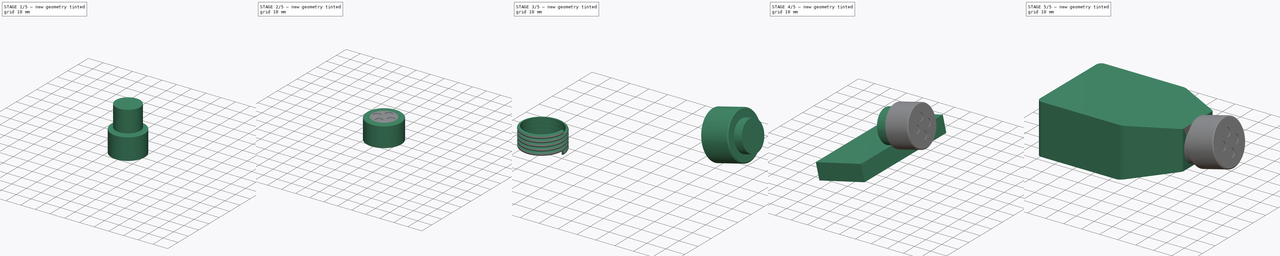
[diagram: build sequence overview — one tinted view per stage of 5, left to right]
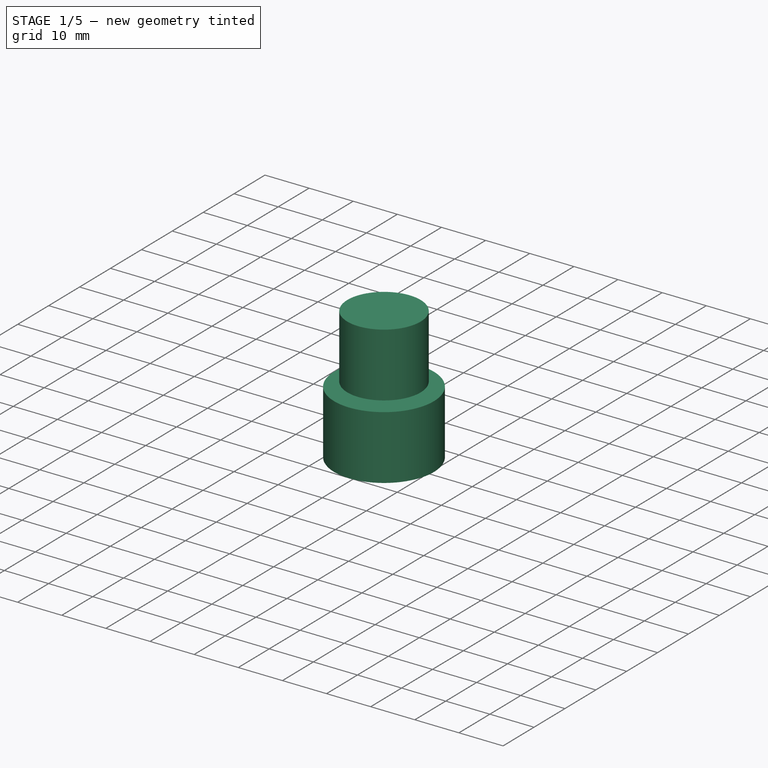
[diagram: stage 1 of 5 — iso view after this stage's code; geometry added in this stage tinted green]
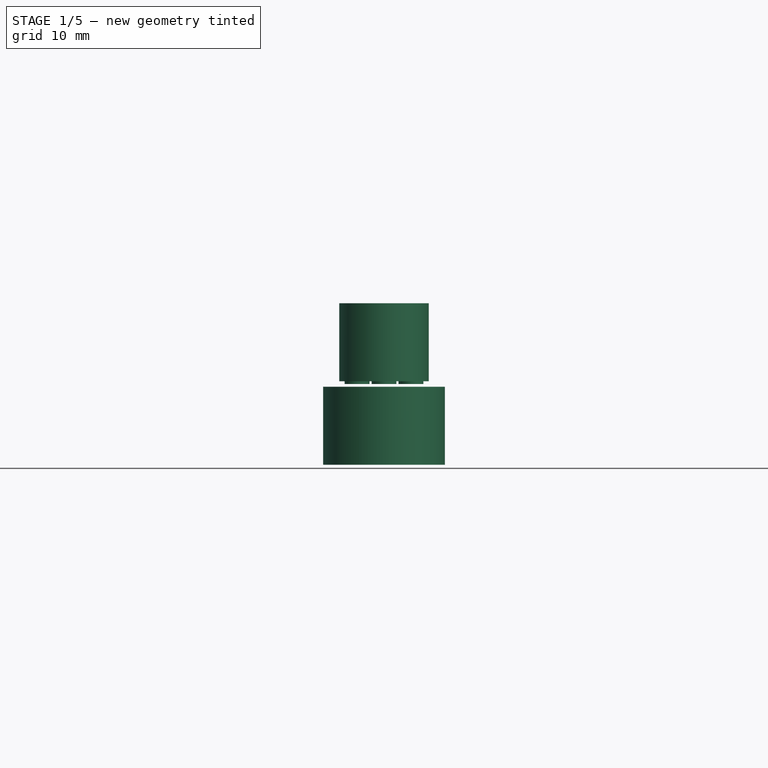
[diagram: stage 1 of 5 — front view after this stage's code; geometry added in this stage tinted green]
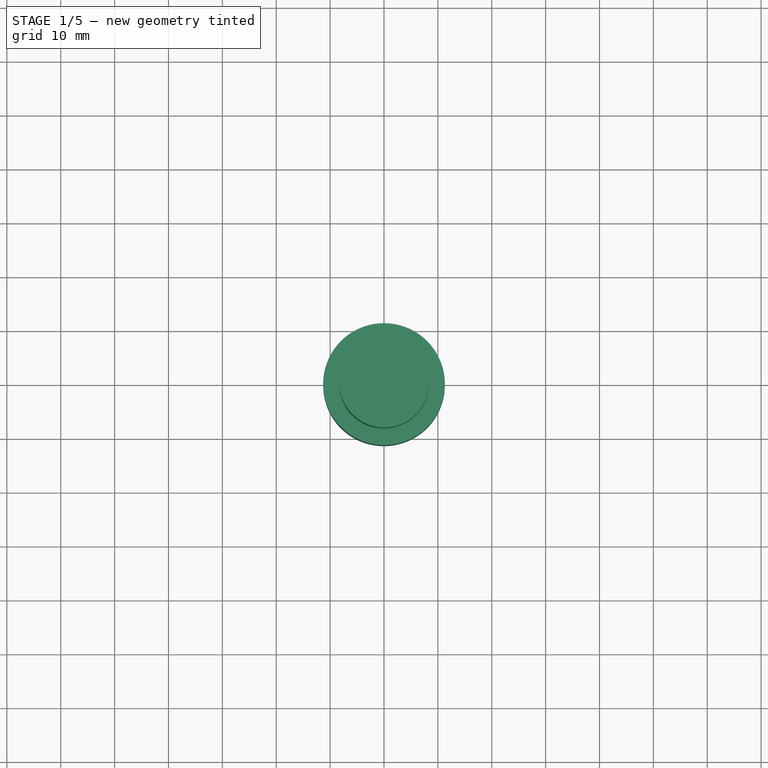
[diagram: stage 1 of 5 — top view after this stage's code; geometry added in this stage tinted green]
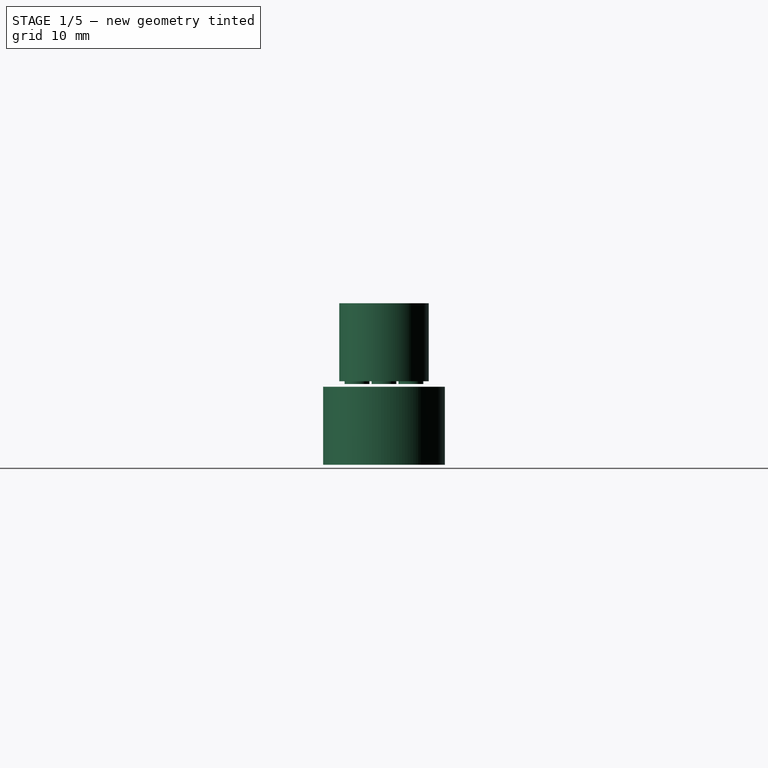
[diagram: stage 1 of 5 — right view after this stage's code; geometry added in this stage tinted green]
FCSTD DOCUMENT  (FreeCAD 0.20R27422 (Git))
Label: Flask
License: All rights reserved
LicenseURL: http://en.wikipedia.org/wiki/All_rights_reserved
objects: TechDraw::DrawViewPart×9, Part::Cylinder×6, Part::Cut×5, Part::Compound×4, Sketcher::SketchObject×3, Part::FeaturePython×3, PartDesign::Body×2, TechDraw::DrawSVGTemplate×2, TechDraw::DrawPage×2, PartDesign::Pad×1, Image::ImagePlane×1, Part::Box×1, Part::Helix×1, PartDesign::FeatureBase×1, PartDesign::AdditivePipe×1, PartDesign::ShapeBinder×1, Part::Chamfer×1
note: 31 computed .brp shape members not serialized (recipe doc carries the construction recipe); baked Part::Feature solids carry a one-line shape summary decoded from their .brp

FEATURE [Part::Cylinder] Cylinder003
  Angle = 360
  AttacherType = Attacher::AttachEngine3D
  FirstAngle = 0
  Height = 14.5
  Placement = pos=(0,0,14.5) rot=(0,0,1;0rad)
  Radius = 8.3
  SecondAngle = 0
FEATURE [Part::Cylinder] Cylinder004
  Angle = 360
  AttacherType = Attacher::AttachEngine3D
  FirstAngle = 0
  Height = 14.5
  Placement = pos=(0,-5,14) rot=(0,0,1;0rad)
  Radius = 2.3
  SecondAngle = 0
FEATURE [Part::FeaturePython] Array  # Draft array (typed FeaturePython)
  AlwaysSyncPlacement = false
  Angle = 360
  ArrayType = 1
  Axis = (0,0,1)
  Base = -> Cylinder004
  Center = (0,0,0)
  Count = 4
  ExpandArray = false
  Fuse = false
  IntervalAxis = (0,0,0)
  IntervalX = (50,0,0)
  IntervalY = (0,50,0)
  IntervalZ = (0,0,50)
  NumberCircles = 3
  NumberPolar = 4
  NumberX = 2
  NumberY = 2
  NumberZ = 1
  PlacementList = 4 placements: [(0,-5,14),(5,0,14),(6.12323e-16,5,14),(-5,8.88178e-16,14)]
  RadialDistance = 50
  ScaleList = (4) [(1,1,1),(1,1,1),(1,1,1),(1,1,1)]
  Symmetry = 1
  TangentialDistance = 25
FEATURE [Part::Cylinder] Cylinder005
  Angle = 360
  AttacherType = Attacher::AttachEngine3D
  FirstAngle = 0
  Height = 14.5
  Placement = pos=(0,0,-1) rot=(0,0,1;0rad)
  Radius = 11.3
  SecondAngle = 0
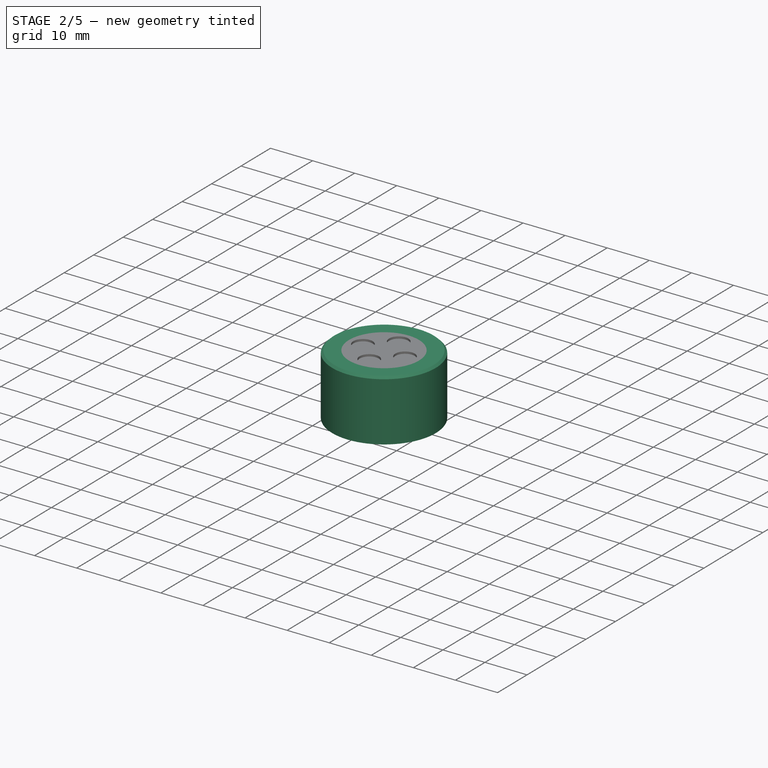
[diagram: stage 2 of 5 — iso view after this stage's code; geometry added in this stage tinted green]
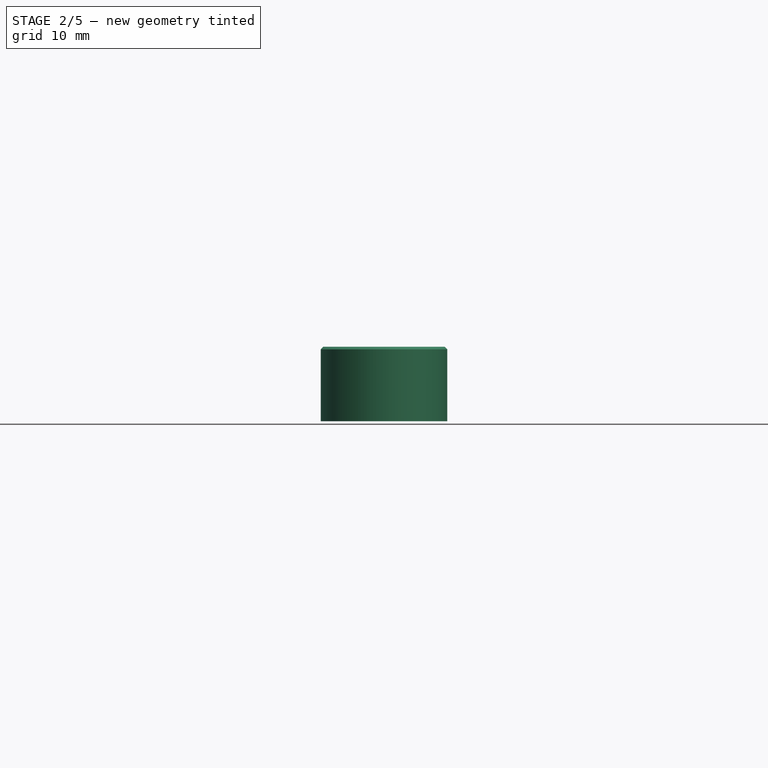
[diagram: stage 2 of 5 — front view after this stage's code; geometry added in this stage tinted green]
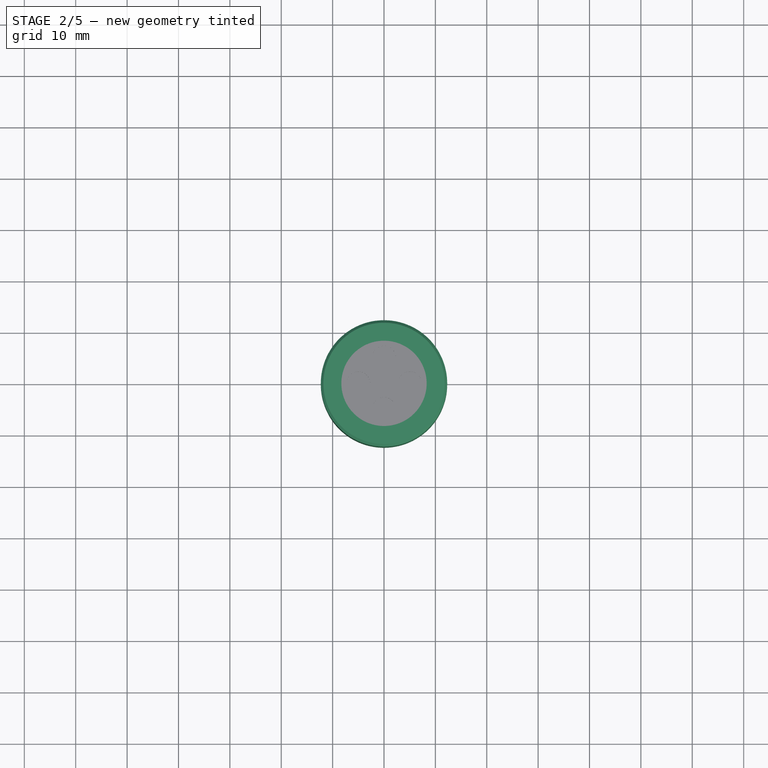
[diagram: stage 2 of 5 — top view after this stage's code; geometry added in this stage tinted green]
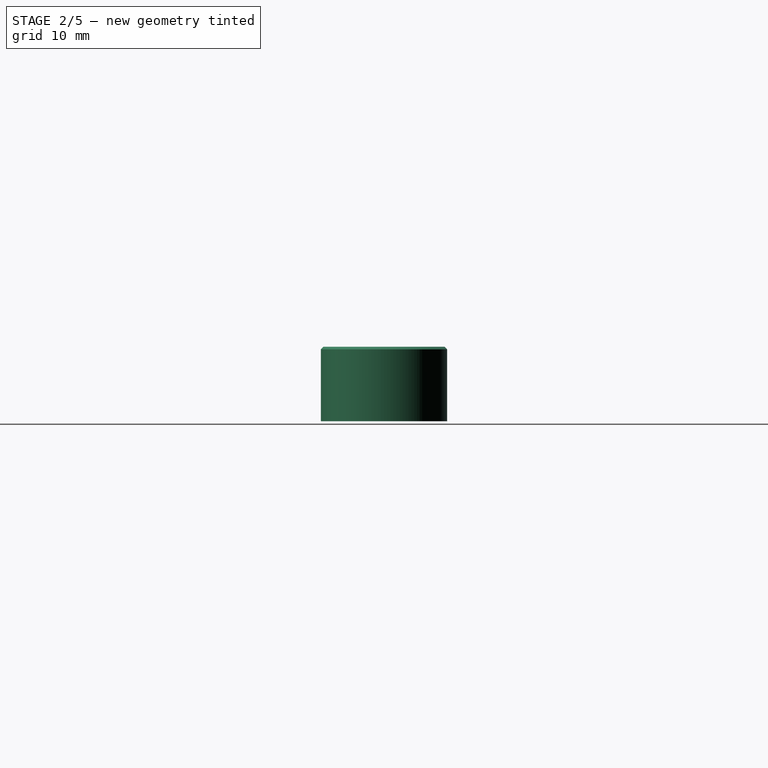
[diagram: stage 2 of 5 — right view after this stage's code; geometry added in this stage tinted green]
FEATURE [TechDraw::DrawViewPart] View
  CoarseView = false
  Direction = (0,0,1)
  Focus = 100
  HardHidden = false
  IsoCount = 0
  IsoHidden = false
  IsoVisible = false
  LockPosition = false
  Perspective = false
  Rotation = 0
  ScaleType = 0
  SeamHidden = false
  SeamVisible = true
  SmoothHidden = false
  SmoothVisible = true
  Source = -> [Compound001]
  X = 52.5267
  XDirection = (1,0,0)
  Y = 182.171
FEATURE [TechDraw::DrawViewPart] View001
  CoarseView = true
  Direction = (0.577,-0.577,0.577)
  Focus = 100
  HardHidden = false
  IsoCount = 0
  IsoHidden = false
  IsoVisible = false
  LockPosition = false
  Perspective = false
  Rotation = 0
  ScaleType = 0
  SeamHidden = false
  SeamVisible = true
  SmoothHidden = false
  SmoothVisible = true
  Source = -> [Compound001]
  X = 49.7205
  XDirection = (0.707,0.707,0)
  Y = 113.419
FEATURE [TechDraw::DrawViewPart] View002
  CoarseView = false
  Direction = (0,-1,0)
  Focus = 100
  HardHidden = false
  IsoCount = 0
  IsoHidden = false
  IsoVisible = false
  LockPosition = false
  Perspective = false
  Rotation = 0
  ScaleType = 0
  SeamHidden = false
  SeamVisible = true
  SmoothHidden = false
  SmoothVisible = true
  Source = -> [Compound001]
  X = 51.9655
  XDirection = (1,0,0)
  Y = 44.1047
FEATURE [Part::Cylinder] Cylinder002
  Angle = 360
  AttacherType = Attacher::AttachEngine3D
  FirstAngle = 0
  Height = 14.5
  Radius = 12.3
  SecondAngle = 0
FEATURE [Part::Cut] Cut002
  Base = -> Cylinder002
  Tool = -> Cylinder003
FEATURE [Part::Cut] Cut003
  Base = -> Cut002
  Tool = -> Array
FEATURE [Part::Cut] Cut004  label="Cup"
  Base = -> Cut003
  Tool = -> Cylinder005
FEATURE [Part::Chamfer] Chamfer  label="Chamfered cup"
  Base = -> Cut004
  Edges = 1 edges r=0.5: [Edge3]
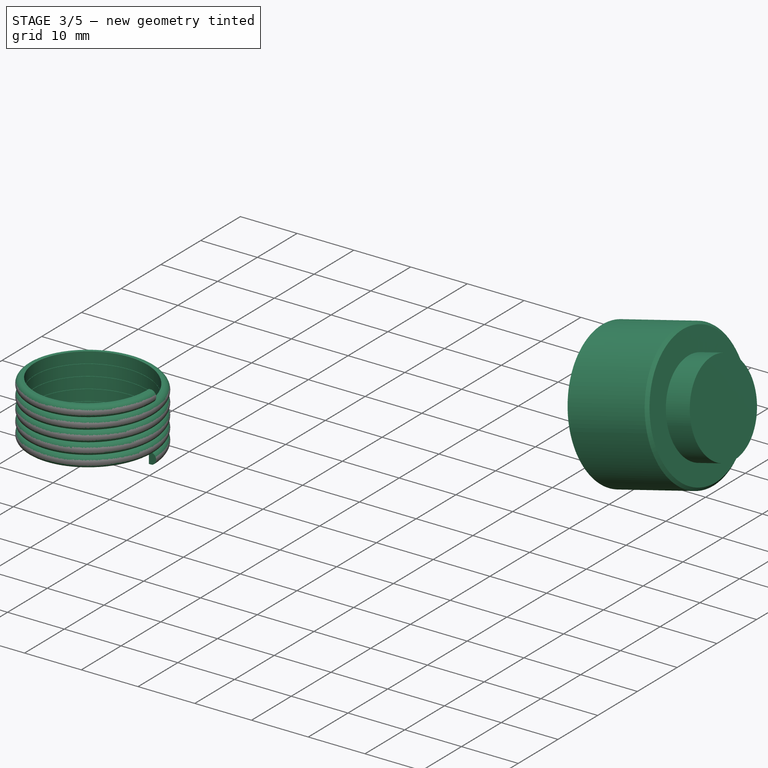
[diagram: stage 3 of 5 — iso view after this stage's code; geometry added in this stage tinted green]
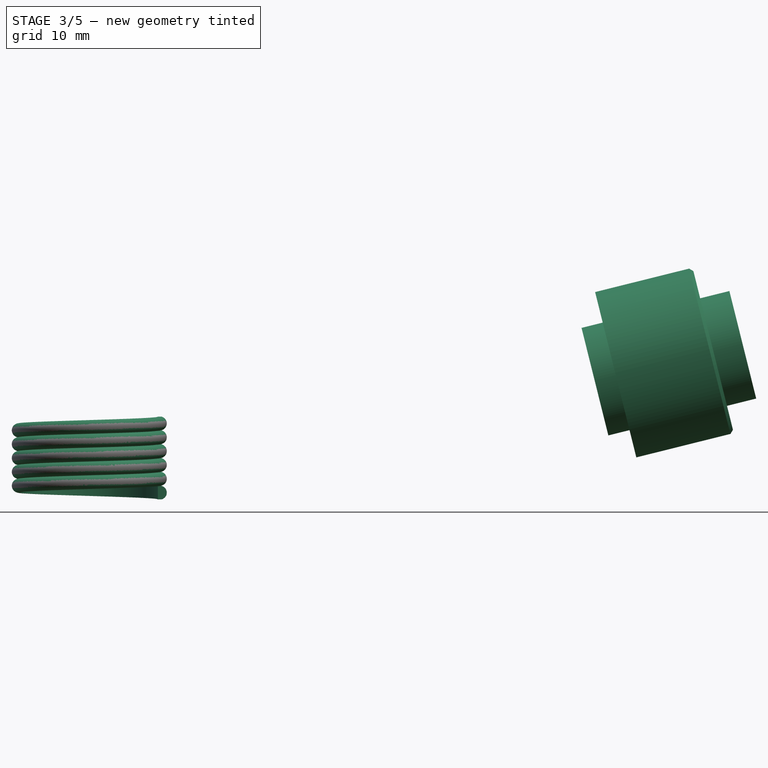
[diagram: stage 3 of 5 — front view after this stage's code; geometry added in this stage tinted green]
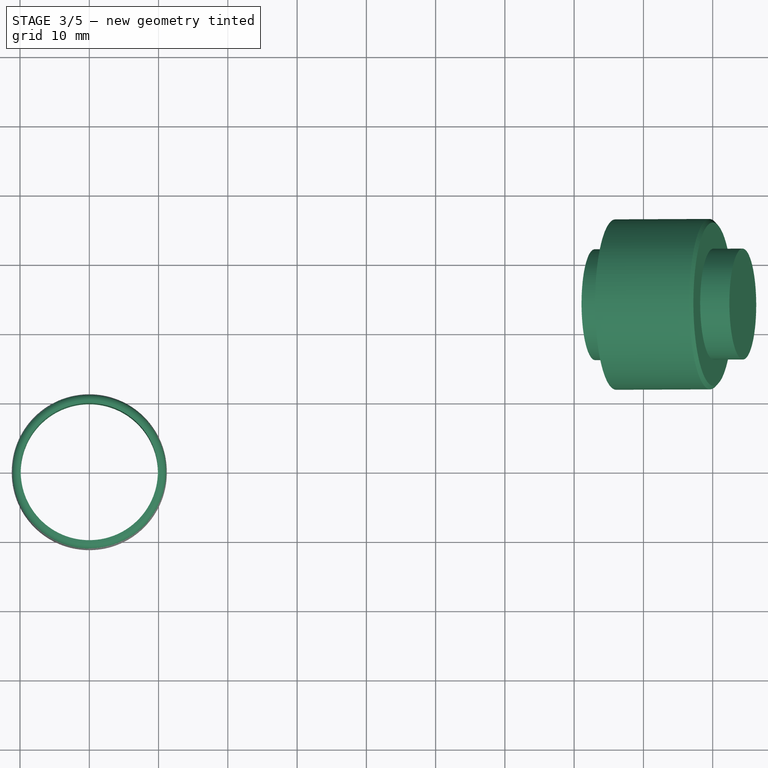
[diagram: stage 3 of 5 — top view after this stage's code; geometry added in this stage tinted green]
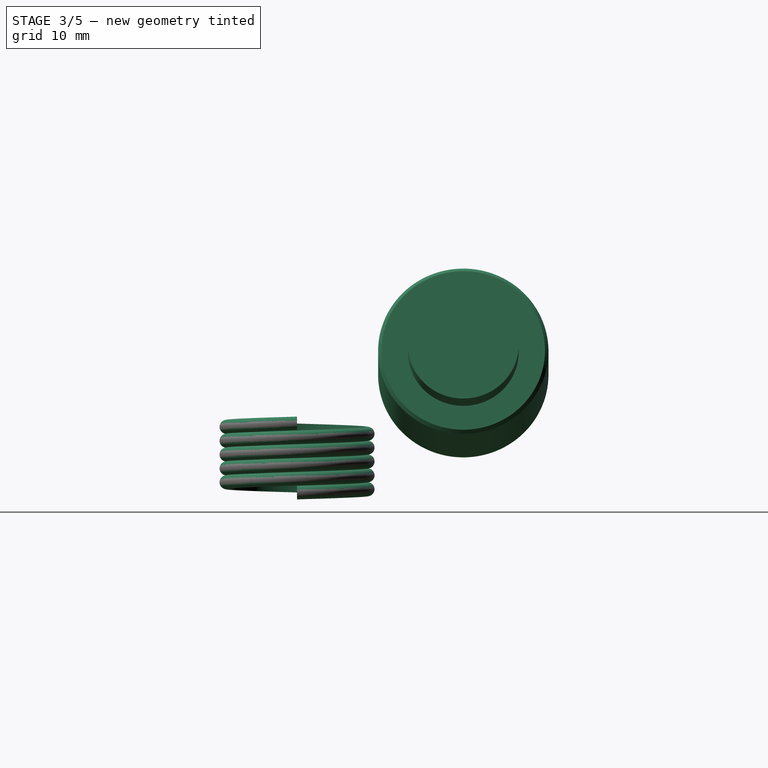
[diagram: stage 3 of 5 — right view after this stage's code; geometry added in this stage tinted green]
FEATURE [Part::Helix] Helix
  Angle = 0
  AttacherType = Attacher::AttachEngine3D
  Height = 10
  LocalCoord = 0
  Pitch = 2
  Placement = pos=(0,0,4) rot=(0,0,1;0rad)
  Radius = 10
  SegmentLength = 1
  Style = 1
FEATURE [PartDesign::FeatureBase] BaseFeature
  BaseFeature = -> Helix
FEATURE [Sketcher::SketchObject] Sketch001
  FullyConstrained = false
  MapMode = 5
  Placement = pos=(0,0,0) rot=(1,0,0;1.5708rad)
  Support = -> [XZ_Plane001]
  sketch-geometry (4):
    g0: LineSegment StartX=9.90453 StartY=0 StartZ=0 EndX=9.90453 EndY=1.9527 EndZ=0
    g1: LineSegment StartX=9.90453 StartY=1.9527 StartZ=0 EndX=10.4045 EndY=1.9527 EndZ=0
    g2: LineSegment StartX=9.90453 StartY=0 StartZ=0 EndX=10.4045 EndY=0 EndZ=0
    g3: ArcOfCircle CenterX=10.1883 CenterY=0.976348 CenterZ=0 NormalX=0 NormalY=0 NormalZ=1 AngleXU=0 Radius=1 StartAngle=4.93031 EndAngle=7.63606
  constraints (11):
    c: PointOnObject(g0,g-1)
    c: Vertical(g0)
    c: Coincident(g1,g0)
    c: Horizontal(g1)
    c: Coincident(g2,g0)
    c: Horizontal(g2)
    c: Equal(g2,g1)
    c: Coincident(g3,g2)
    c: Coincident(g3,g1)
    c: DistanceX(g1,g1) = 0.5
    c: Radius(g3) = 1
FEATURE [PartDesign::AdditivePipe] AdditivePipe
  AuxilleryCurvelinear = true
  AuxillerySpineTangent = false
  BaseFeature = -> BaseFeature
  Binormal = (0,0,0)
  Mode = 2
  Profile = -> Sketch001
  Spine = -> BaseFeature
  SpineTangent = false
  Transformation = 0
  Transition = 0
FEATURE [TechDraw::DrawSVGTemplate] Template
  Height = 210
  Orientation = 1
  Width = 297
FEATURE [Part::Cylinder] Cylinder001  label="Cylinder"
  Angle = 360
  AttacherType = Attacher::AttachEngine3D
  FirstAngle = 0
  Height = 22
  Placement = pos=(73,24,17) rot=(0,1,0;1.32645rad)
  Radius = 8
  SecondAngle = 0
FEATURE [Part::Compound] Compound002  label="Cup compound"
  Links = -> [Chamfer]
FEATURE [TechDraw::DrawViewPart] View003
  CoarseView = false
  Direction = (-0.041,-0.71,0.703)
  Focus = 100
  HardHidden = false
  IsoCount = 0
  IsoHidden = false
  IsoVisible = false
  LockPosition = false
  Perspective = false
  Rotation = 0
  ScaleType = 0
  SeamHidden = false
  SeamVisible = true
  SmoothHidden = false
  SmoothVisible = true
  Source = -> [Compound002]
  X = 131.824
  XDirection = (0.999,-0.033,0.025)
  Y = 41.0735
FEATURE [TechDraw::DrawViewPart] View005
  CoarseView = false
  Direction = (0,0,1)
  Focus = 100
  HardHidden = false
  IsoCount = 0
  IsoHidden = false
  IsoVisible = false
  LockPosition = false
  Perspective = false
  Rotation = 0
  ScaleType = 0
  SeamHidden = false
  SeamVisible = true
  SmoothHidden = false
  SmoothVisible = true
  Source = -> [Compound002]
  X = 136.765
  XDirection = (-0.707,0,0)
  Y = 176.029
FEATURE [TechDraw::DrawViewPart] View006
  CoarseView = false
  Direction = (0.577,-0.577,0.577)
  Focus = 100
  HardHidden = false
  IsoCount = 0
  IsoHidden = false
  IsoVisible = false
  LockPosition = false
  Perspective = false
  Rotation = 0
  ScaleType = 0
  SeamHidden = false
  SeamVisible = true
  SmoothHidden = false
  SmoothVisible = true
  Source = -> [Compound002]
  X = 135.838
  XDirection = (0.707,0.707,0)
  Y = 101.294
FEATURE [Part::FeaturePython] Clone001  label="Cup compound clone"  # Draft clone (typed FeaturePython)
  AttacherType = Attacher::AttachEngine3D
  Fuse = false
  Objects = -> [Compound002]
  Placement = pos=(76,24,18) rot=(0,1,0;1.32645rad)
  Scale = (1,1,1)
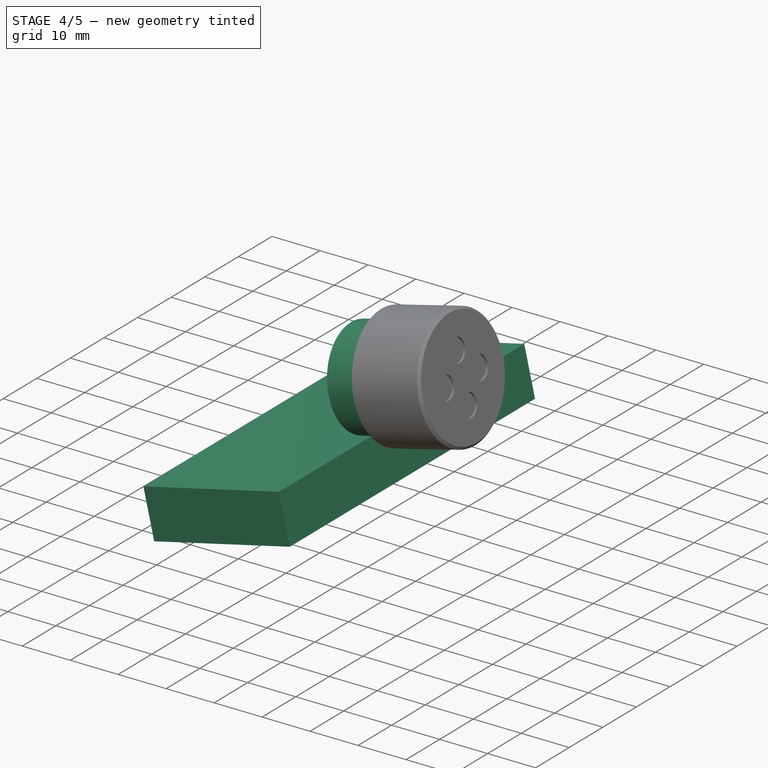
[diagram: stage 4 of 5 — iso view after this stage's code; geometry added in this stage tinted green]
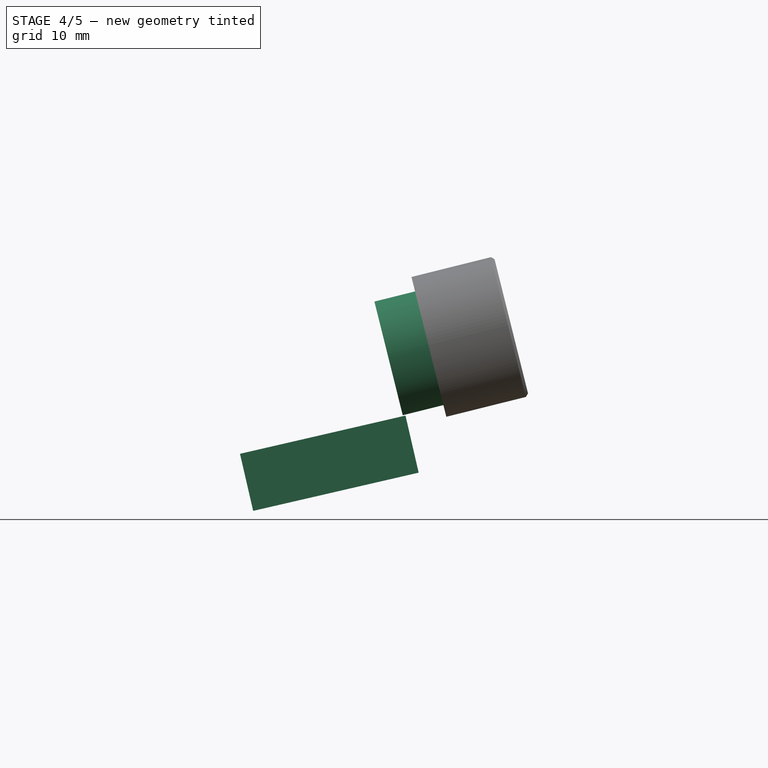
[diagram: stage 4 of 5 — front view after this stage's code; geometry added in this stage tinted green]
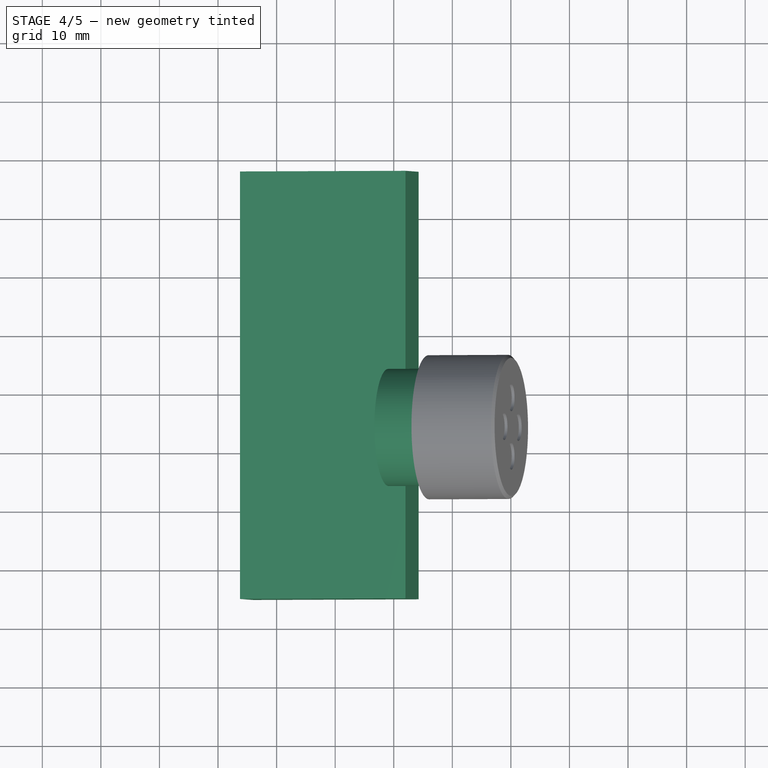
[diagram: stage 4 of 5 — top view after this stage's code; geometry added in this stage tinted green]
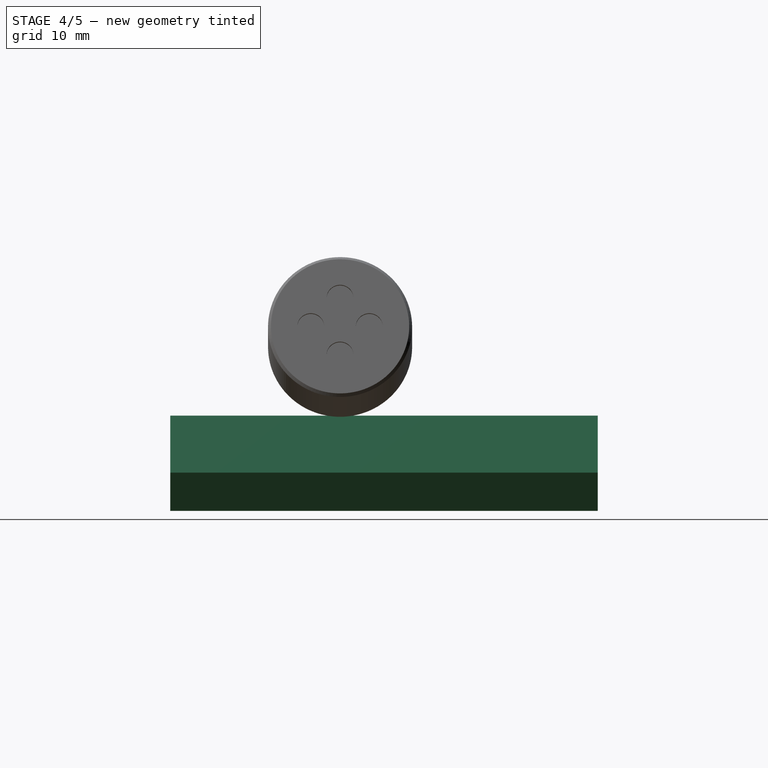
[diagram: stage 4 of 5 — right view after this stage's code; geometry added in this stage tinted green]
FEATURE [PartDesign::Body] Body  label="T25 flask pad"
  Group = -> [Sketch,Pad]
  Origin = -> Origin
  Tip = -> Pad
FEATURE [Image::ImagePlane] ImagePlane
  Placement = pos=(41.5,20.5,0) rot=(0,0,1;0rad)
  XSize = 188.103
  YSize = 104.23
FEATURE [Part::Box] Box  label="Cube"
  AttacherType = Attacher::AttachEngine3D
  Height = 10
  Length = 29
  Placement = pos=(46,-5,-10) rot=(0,-1,0;0.226893rad)
  Width = 73
FEATURE [Part::Cylinder] Cylinder  label="Neck base"
  Angle = 360
  AttacherType = Attacher::AttachEngine3D
  FirstAngle = 0
  Height = 20
  Placement = pos=(0,0,-4) rot=(0,0,1;0rad)
  Radius = 10
  SecondAngle = 0
FEATURE [PartDesign::ShapeBinder] CopyCylinder002
  Placement = pos=(0,0,14.5) rot=(0,0,1;0rad)
  TraceSupport = false
FEATURE [Sketcher::SketchObject] Sketch002
  FullyConstrained = true
  MapMode = 5
  Placement = pos=(0,0,14.5) rot=(0,0,1;0rad)
  Support = -> [CopyCylinder002]
FEATURE [PartDesign::Body] Body001  label="Thread"
  BaseFeature = -> Helix
  Group = -> [BaseFeature,Sketch001,AdditivePipe,CopyCylinder002,Sketch002]
  Origin = -> Origin001
  Placement = pos=(0,0,4) rot=(0,0,1;0rad)
  Tip = -> AdditivePipe
FEATURE [Part::Compound] Compound
  Links = -> [Body001,Cylinder]
FEATURE [Part::FeaturePython] Clone  label="Bottleneck"  # Draft clone (typed FeaturePython)
  AttacherType = Attacher::AttachEngine3D
  Fuse = false
  Objects = -> [Compound]
  Placement = pos=(73,24,17) rot=(0,1,0;1.32645rad)
  Scale = (1,1,1)
FEATURE [Part::Cut] Cut001  label="Holed bottleneck"
  Base = -> Clone
  Tool = -> Cylinder001
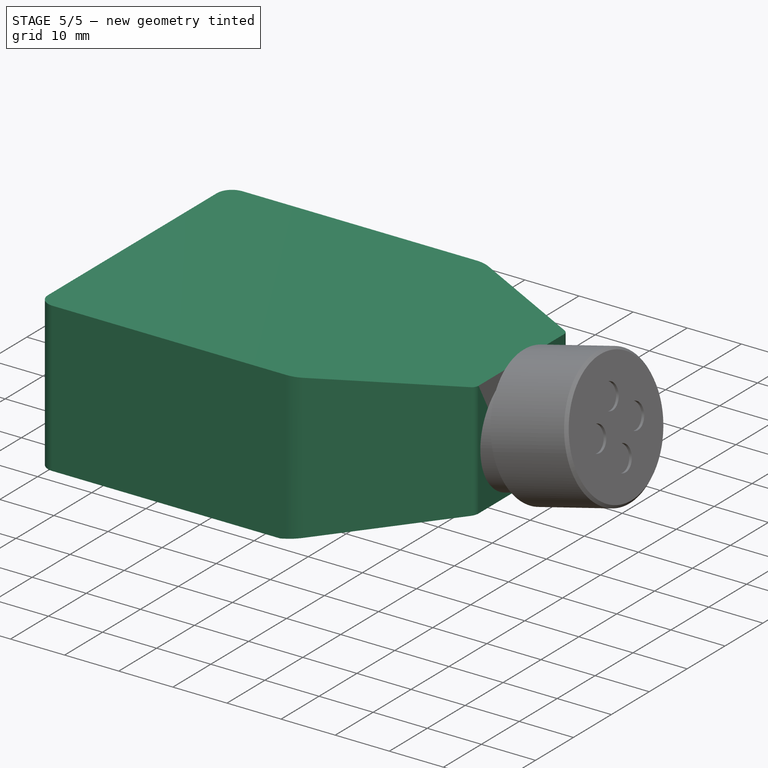
[diagram: stage 5 of 5 — iso view after this stage's code; geometry added in this stage tinted green]
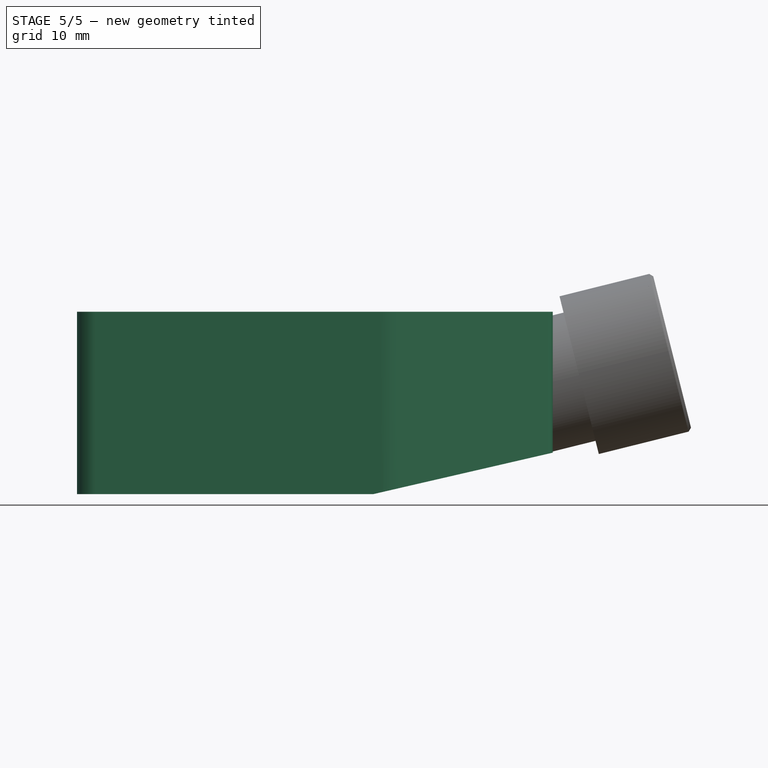
[diagram: stage 5 of 5 — front view after this stage's code; geometry added in this stage tinted green]
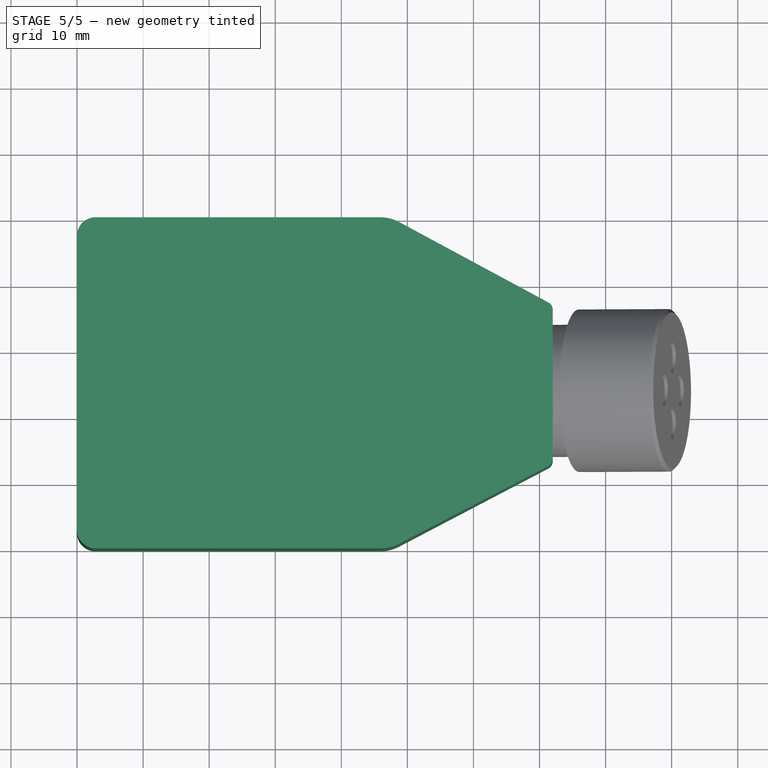
[diagram: stage 5 of 5 — top view after this stage's code; geometry added in this stage tinted green]
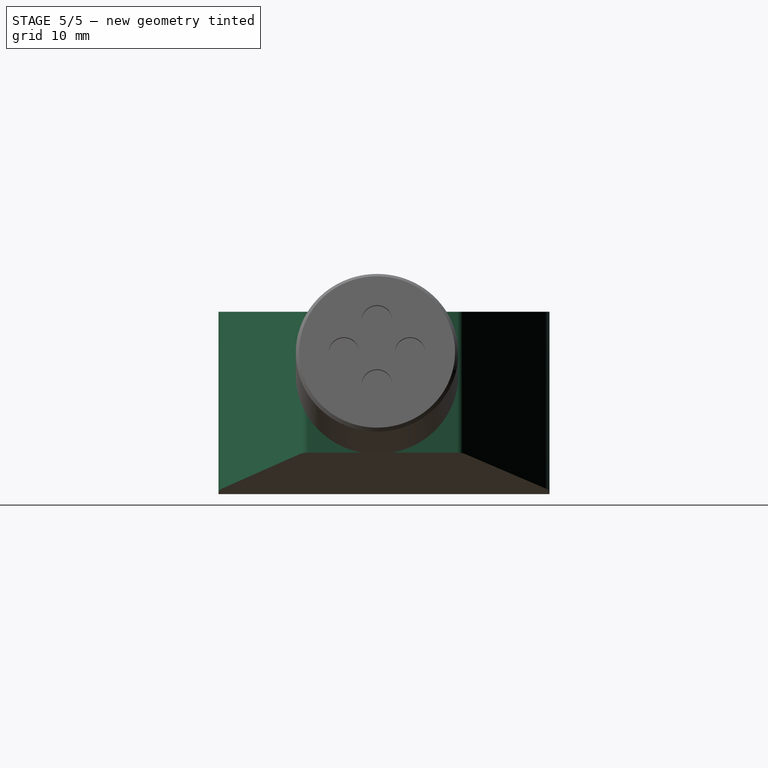
[diagram: stage 5 of 5 — right view after this stage's code; geometry added in this stage tinted green]
FEATURE [Sketcher::SketchObject] Sketch
  FullyConstrained = false
  MapMode = 5
  Support = -> [XY_Plane]
  sketch-geometry (25):
    g0: LineSegment StartX=2.7765 StartY=0 StartZ=0 EndX=72 EndY=0 EndZ=0
    g1: LineSegment StartX=72 StartY=50.1 StartZ=0 EndX=2.7765 EndY=50.1 EndZ=0
    g2: LineSegment StartX=0 StartY=47.3235 StartZ=0 EndX=0 EndY=2.7765 EndZ=0
    g3: ArcOfCircle CenterX=2.7765 CenterY=47.3235 CenterZ=0 NormalX=0 NormalY=0 NormalZ=1 AngleXU=0 Radius=2.7765 StartAngle=1.5708 EndAngle=3.14159
    g4: GeomPoint X=0 Y=50.1 Z=0
    g5: ArcOfCircle CenterX=2.7765 CenterY=2.7765 CenterZ=0 NormalX=0 NormalY=0 NormalZ=1 AngleXU=0 Radius=2.7765 StartAngle=3.14159 EndAngle=4.71239
    g6: GeomPoint X=0 Y=0 Z=0
    g7: LineSegment StartX=2.7765 StartY=50.1 StartZ=0 EndX=45.8983 EndY=50.1 EndZ=0
    g8: LineSegment StartX=72 StartY=0 StartZ=0 EndX=72 EndY=25.05 EndZ=0
    g9: LineSegment StartX=72 StartY=25.05 StartZ=0 EndX=72 EndY=50.1 EndZ=0
    g10: LineSegment StartX=72 StartY=25.05 StartZ=0 EndX=72 EndY=36.1024 EndZ=0
    g11: LineSegment StartX=72 StartY=25.05 StartZ=0 EndX=72 EndY=13.5309 EndZ=0
    g12: LineSegment StartX=71.3412 StartY=37.206 StartZ=0 EndX=48.7658 EndY=49.3763 EndZ=0
    g13: LineSegment StartX=71.3243 StartY=12.4183 StartZ=0 EndX=48.7333 EndY=0.680592 EndZ=0
    g14: LineSegment StartX=45.9472 StartY=0 StartZ=0 EndX=2.7765 EndY=0 EndZ=0
    g15: LineSegment StartX=0 StartY=2.7765 StartZ=0 EndX=0 EndY=47.3235 EndZ=0
    g16: LineSegment StartX=47.4234 StartY=50.1 StartZ=0 EndX=47.4234 EndY=0 EndZ=0
    g17: ArcOfCircle CenterX=45.8983 CenterY=44.0572 CenterZ=0 NormalX=0 NormalY=0 NormalZ=1 AngleXU=0 Radius=6.04278 StartAngle=1.07636 EndAngle=1.5708
    g18: GeomPoint X=47.4234 Y=50.1 Z=0
    g19: ArcOfCircle CenterX=45.9472 CenterY=6.04278 CenterZ=0 NormalX=0 NormalY=0 NormalZ=1 AngleXU=0 Radius=6.04278 StartAngle=4.71239 EndAngle=5.19157
    g20: GeomPoint X=47.4234 Y=0 Z=0
    g21: ArcOfCircle CenterX=70.7463 CenterY=36.1024 CenterZ=0 NormalX=0 NormalY=0 NormalZ=1 AngleXU=0 Radius=1.25373 StartAngle=-1.8e-15 EndAngle=1.07636
    g22: GeomPoint X=72 Y=36.8509 Z=0
    g23: ArcOfCircle CenterX=70.7463 CenterY=13.5309 CenterZ=0 NormalX=0 NormalY=0 NormalZ=1 AngleXU=0 Radius=1.25373 StartAngle=5.19157 EndAngle=6.28319
    g24: GeomPoint X=72 Y=12.7694 Z=0
  constraints (52):
    c: Coincident(g0,g8)
    c: Coincident(g9,g1)
    c: Horizontal(g0)
    c: Horizontal(g1)
    c: Vertical(g2)
    c: Coincident(g6,g-1)
    c: DistanceX(g4,g1) = 72
    c: DistanceY(g6,g4) = 50.1
    c: PointOnObject(g4,g1)
    c: PointOnObject(g4,g2)
    c: Tangent(g1,g3) = -1.5708
    c: Tangent(g2,g3) = -1.5708
    c: PointOnObject(g6,g0)
    c: PointOnObject(g6,g2)
    c: Tangent(g0,g5) = -1.5708
    c: Tangent(g2,g5) = -1.5708
    c: Equal(g5,g3)
    c: Coincident(g7,g1)
    c: PointOnObject(g18,g1)
    c: Coincident(g8,g9)
    c: Vertical(g8)
    c: Vertical(g9)
    c: Coincident(g10,g8)
    c: PointOnObject(g22,g9)
    c: Coincident(g11,g10)
    c: PointOnObject(g24,g8)
    c: PointOnObject(g20,g0)
    c: Coincident(g14,g0)
    c: Coincident(g15,g2)
    c: Coincident(g15,g2)
    c: Coincident(g16,g18)
    c: Coincident(g16,g20)
    c: Vertical(g16)
    c: PointOnObject(g18,g7)
    c: PointOnObject(g18,g12)
    c: Tangent(g7,g17) = 1.5708
    c: Tangent(g12,g17) = -1.5708
    c: PointOnObject(g20,g13)
    c: PointOnObject(g20,g14)
    c: Tangent(g13,g19) = 1.5708
    c: Tangent(g14,g19) = 1.5708
    c: Equal(g19,g17)
    c: Equal(g9,g8)
    c: PointOnObject(g22,g12)
    c: PointOnObject(g22,g10)
    c: Tangent(g12,g21) = -1.5708
    c: Tangent(g10,g21) = -1.5708
    c: PointOnObject(g24,g13)
    c: PointOnObject(g24,g11)
    c: Tangent(g13,g23) = 1.5708
    c: Tangent(g11,g23) = 1.5708
    c: Equal(g23,g21)
FEATURE [PartDesign::Pad] Pad
  Direction = (0,0,1)
  Length = 27.6
  Length2 = 10
  Profile = -> Sketch
  ReferenceAxis = -> Sketch [N_Axis]
  Type = 0
FEATURE [Part::Cut] Cut  label="Cutted flask"
  Base = -> Body
  Tool = -> Box
FEATURE [Part::Compound] Compound001  label="Flask"
  Links = -> [Cut001,Cut]
FEATURE [Part::Compound] Compound003  label="Flask w cup"
  Links = -> [Clone001,Compound001]
FEATURE [TechDraw::DrawSVGTemplate] Template001
  EditableTexts = Designed_by_Name=Designed by Name; Drawing_number=Drawing number; FC-Date=Date; FC-SC=Scale; FC-SH=Sheet; FC-Title=Title; Subtitle=Subtitle; Weight=Weight
  Height = 210
  Orientation = 1
  Width = 297
FEATURE [TechDraw::DrawPage] Page001
  KeepUpdated = true
  NextBalloonIndex = 1
  ProjectionType = 0
  Template = -> Template001
FEATURE [TechDraw::DrawViewPart] View007
  CoarseView = false
  Direction = (0,-0.707,0.707)
  Focus = 100
  HardHidden = false
  IsoCount = 0
  IsoHidden = false
  IsoVisible = false
  LockPosition = false
  Perspective = false
  Rotation = 0
  ScaleType = 0
  SeamHidden = false
  SeamVisible = true
  SmoothHidden = false
  SmoothVisible = true
  Source = -> [Compound003]
  X = 233.426
  XDirection = (1,0,0)
  Y = 42.3088
FEATURE [TechDraw::DrawViewPart] View008
  CoarseView = false
  Direction = (0.577,-0.577,0.577)
  Focus = 100
  HardHidden = false
  IsoCount = 0
  IsoHidden = false
  IsoVisible = false
  LockPosition = false
  Perspective = false
  Rotation = 0
  ScaleType = 0
  SeamHidden = false
  SeamVisible = true
  SmoothHidden = false
  SmoothVisible = true
  Source = -> [Compound003]
  X = 229.412
  XDirection = (0.707,0.707,0)
  Y = 170.779
FEATURE [TechDraw::DrawViewPart] View009
  CoarseView = false
  Direction = (0,-1,0)
  Focus = 100
  HardHidden = false
  IsoCount = 0
  IsoHidden = false
  IsoVisible = false
  LockPosition = false
  Perspective = false
  Rotation = 0
  ScaleType = 0
  SeamHidden = false
  SeamVisible = true
  SmoothHidden = false
  SmoothVisible = true
  Source = -> [Compound003]
  X = 229.412
  XDirection = (1,0,0)
  Y = 105.618
FEATURE [TechDraw::DrawPage] Page
  KeepUpdated = true
  NextBalloonIndex = 1
  ProjectionType = 0
  Template = -> Template
  Views = -> [View,View001,View002,View003,View005,View006,View007,View008,View009]
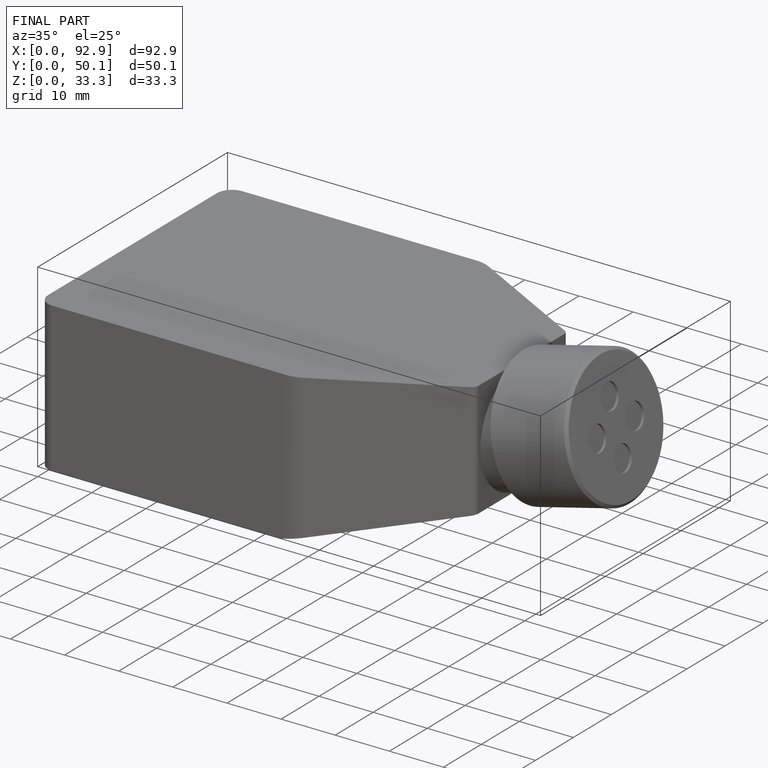
[diagram: finished part — iso view with bounding-box wireframe]
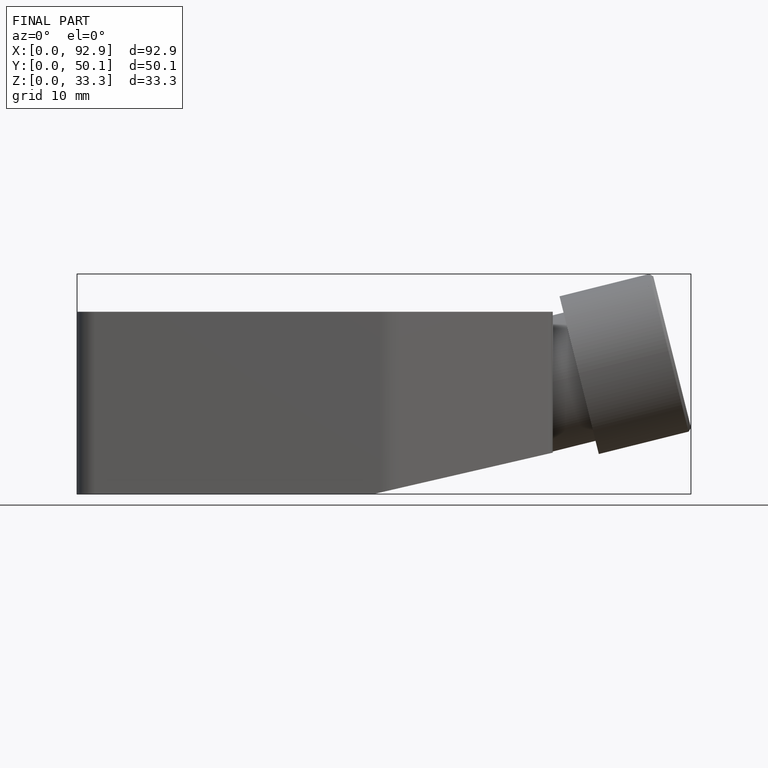
[diagram: finished part — front view with bounding-box wireframe]
